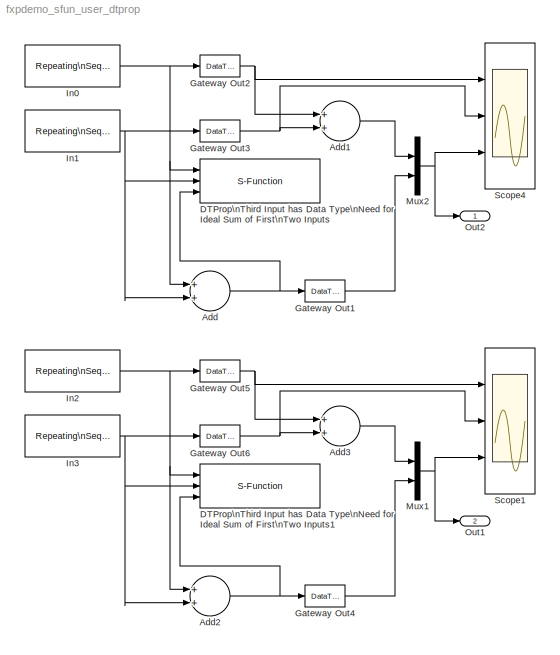
MODEL fxpdemo_sfun_user_dtprop
KIND model
CONFIG AbsTol = auto
CONFIG FixedStep = 0.001
CONFIG MaxStep = auto
CONFIG MinStep = auto
CONFIG RelTol = 1e-3
CONFIG Solver = FixedStepDiscrete
CONFIG SolverMode = Auto
CONFIG StartTime = 0.0
CONFIG StopTime = 1
BLOCK [Sum] Add
  InputSameDT = off
  OutDataTypeMode = Inherit via back propagation
  OutScaling = 2^-10
  Ports = [2, 1]
  SaturateOnIntegerOverflow = off
  ShowAdditionalParam = on
BLOCK [Sum] Add1
  InputSameDT = off
  OutDataTypeMode = double
  OutScaling = 2^-10
  Ports = [2, 1]
  SaturateOnIntegerOverflow = off
  ShowAdditionalParam = on
BLOCK [Sum] Add2
  InputSameDT = off
  OutDataTypeMode = Inherit via back propagation
  OutScaling = 2^-10
  Ports = [2, 1]
  SaturateOnIntegerOverflow = off
  ShowAdditionalParam = on
BLOCK [Sum] Add3
  InputSameDT = off
  OutDataTypeMode = double
  OutScaling = 2^-10
  Ports = [2, 1]
  SaturateOnIntegerOverflow = off
  ShowAdditionalParam = on
BLOCK [S-Function] DTProp\nThird Input has Data Type\nNeed for Ideal Sum of First\nTwo Inputs
  FunctionName = sfun_user_fxp_dtprop
  Ports = [3]
BLOCK [S-Function] DTProp\nThird Input has Data Type\nNeed for Ideal Sum of First\nTwo Inputs1
  FunctionName = sfun_user_fxp_dtprop
  Ports = [3]
BLOCK [DataTypeConversion] Gateway Out1
  DataType = double
  SaturateOnIntegerOverflow = off
BLOCK [DataTypeConversion] Gateway Out2
  DataType = double
  SaturateOnIntegerOverflow = off
BLOCK [DataTypeConversion] Gateway Out3
  DataType = double
  SaturateOnIntegerOverflow = off
BLOCK [DataTypeConversion] Gateway Out4
  DataType = double
  SaturateOnIntegerOverflow = off
BLOCK [DataTypeConversion] Gateway Out5
  DataType = double
  SaturateOnIntegerOverflow = off
BLOCK [DataTypeConversion] Gateway Out6
  DataType = double
  SaturateOnIntegerOverflow = off
BLOCK [Reference] In0  REF=fixpt_lib_4/Sources/Repeating\nSequence\nInterpolated  (lib defined in mdl_ef9dacb0d1df)
  LockScale = off
  LookUpMeth = Interpolation-Use End Values
  OutDataType = sfix(16)
  OutScaling = 2^-8
  OutValues = 2^(16-1-8)*[-1 linspace(-1,0,5) 0 linspace(0,1,5) 1]
  OutputDataTypeScalingMode = Specify via dialog
  Ports = [0, 1]
  SourceBlock = fixpt_lib_4/Sources/Repeating\nSequence\nInterpolated
  SourceType = Fixed-Point Repeating Sequence Interpolated
  TimeValues = 1/13*linspace(0,1,13)
  tsamp = 0.001
BLOCK [Reference] In1  REF=fixpt_lib_4/Sources/Repeating\nSequence\nInterpolated  (lib defined in mdl_ef9dacb0d1df)
  LockScale = off
  LookUpMeth = Interpolation-Use End Values
  OutDataType = sfix(16)
  OutScaling = 2^-5
  OutValues = 2^(16-1+(-5))*[-1 linspace(-1,0,5) 0 linspace(0,1,5) 1]
  OutputDataTypeScalingMode = Specify via dialog
  Ports = [0, 1]
  SourceBlock = fixpt_lib_4/Sources/Repeating\nSequence\nInterpolated
  SourceType = Fixed-Point Repeating Sequence Interpolated
  TimeValues = linspace(0,1,13)
  tsamp = 0.001
BLOCK [Reference] In2  REF=fixpt_lib_4/Sources/Repeating\nSequence\nInterpolated  (lib defined in mdl_ef9dacb0d1df)
  LockScale = off
  LookUpMeth = Interpolation-Use End Values
  OutDataType = ufix(5)
  OutScaling = 2^0
  OutValues = 2^(5+(0))*[0 linspace(0,1,5) 1]
  OutputDataTypeScalingMode = Specify via dialog
  Ports = [0, 1]
  SourceBlock = fixpt_lib_4/Sources/Repeating\nSequence\nInterpolated
  SourceType = Fixed-Point Repeating Sequence Interpolated
  TimeValues = linspace(0,1,7)
  tsamp = 0.001
BLOCK [Reference] In3  REF=fixpt_lib_4/Sources/Repeating\nSequence\nInterpolated  (lib defined in mdl_ef9dacb0d1df)
  LockScale = off
  LookUpMeth = Interpolation-Use End Values
  OutDataType = ufix(4)
  OutScaling = 2^-4
  OutValues = 2^(4+(-4))*[0 linspace(0,1,5) 1]
  OutputDataTypeScalingMode = Specify via dialog
  Ports = [0, 1]
  SourceBlock = fixpt_lib_4/Sources/Repeating\nSequence\nInterpolated
  SourceType = Fixed-Point Repeating Sequence Interpolated
  TimeValues = 1/7*linspace(0,1,7)
  tsamp = 0.001
BLOCK [Mux] Mux1
  DisplayOption = bar
  Inputs = 2
  Ports = [2, 1]
BLOCK [Mux] Mux2
  DisplayOption = bar
  Inputs = 2
  Ports = [2, 1]
BLOCK [Outport] Out1
  Port = 2
BLOCK [Outport] Out2
BLOCK [Scope] Scope1
  DataFormat = StructureWithTime
  LimitDataPoints = off
  NumInputPorts = 3
  Ports = [3]
  TimeRange = 1
  YMax = 35~1~35
  YMin = 0~0~0
BLOCK [Scope] Scope4
  DataFormat = StructureWithTime
  LimitDataPoints = off
  NumInputPorts = 3
  Ports = [3]
  SaveName = ScopeData3
  TimeRange = 1
  YMax = 150~1500~1500
  YMin = -150~-1500~-1500
LINE Add1:1 -> Mux2:1
NET Add2:1 -> DTProp\nThird Input has Data Type\nNeed for Ideal Sum of First\nTwo Inputs1:3, Gateway Out4:1
LINE Add3:1 -> Mux1:1
NET Add:1 -> DTProp\nThird Input has Data Type\nNeed for Ideal Sum of First\nTwo Inputs:3, Gateway Out1:1
LINE Gateway Out1:1 -> Mux2:2
NET Gateway Out2:1 -> Add1:1, Scope4:1
NET Gateway Out3:1 -> Add1:2, Scope4:2
LINE Gateway Out4:1 -> Mux1:2
NET Gateway Out5:1 -> Add3:1, Scope1:1
NET Gateway Out6:1 -> Add3:2, Scope1:2
NET In0:1 -> Add:1, DTProp\nThird Input has Data Type\nNeed for Ideal Sum of First\nTwo Inputs:1, Gateway Out2:1
NET In1:1 -> Add:2, DTProp\nThird Input has Data Type\nNeed for Ideal Sum of First\nTwo Inputs:2, Gateway Out3:1
NET In2:1 -> Add2:1, DTProp\nThird Input has Data Type\nNeed for Ideal Sum of First\nTwo Inputs1:1, Gateway Out5:1
NET In3:1 -> Add2:2, DTProp\nThird Input has Data Type\nNeed for Ideal Sum of First\nTwo Inputs1:2, Gateway Out6:1
NET Mux1:1 -> Out1:1, Scope1:3
NET Mux2:1 -> Out2:1, Scope4:3
note: NET lines group one-source signal fan-out (src -> all destinations, sorted); 1:1 wires keep LINE
